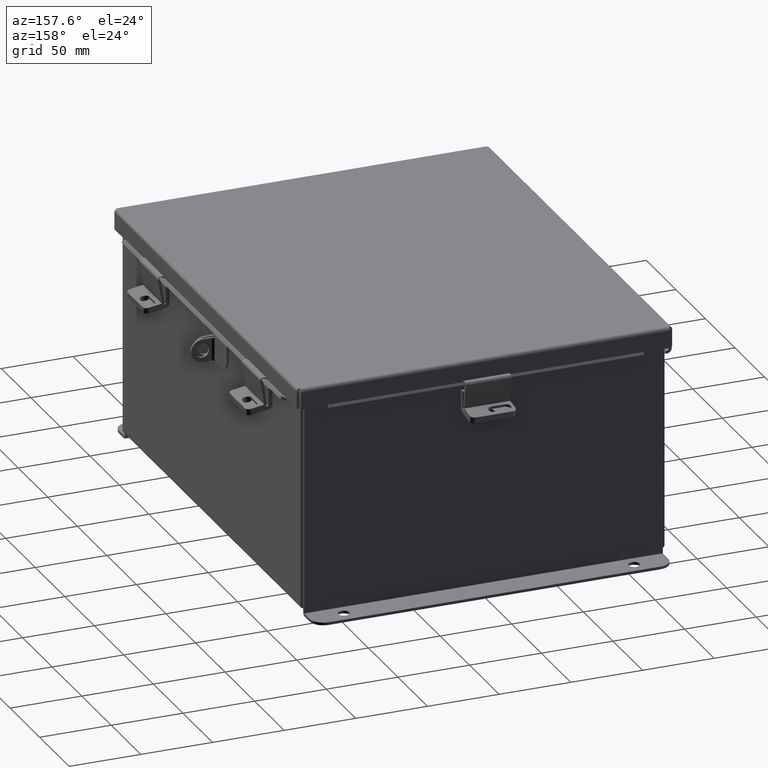
[diagram: clean part render]
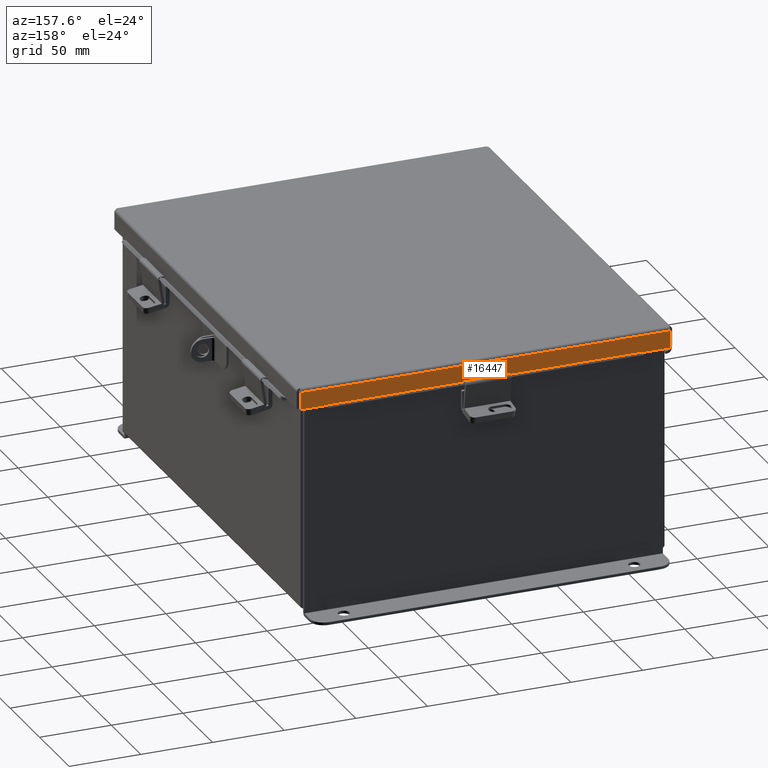
[diagram: same view with one face highlighted and labeled with its STEP entity id]
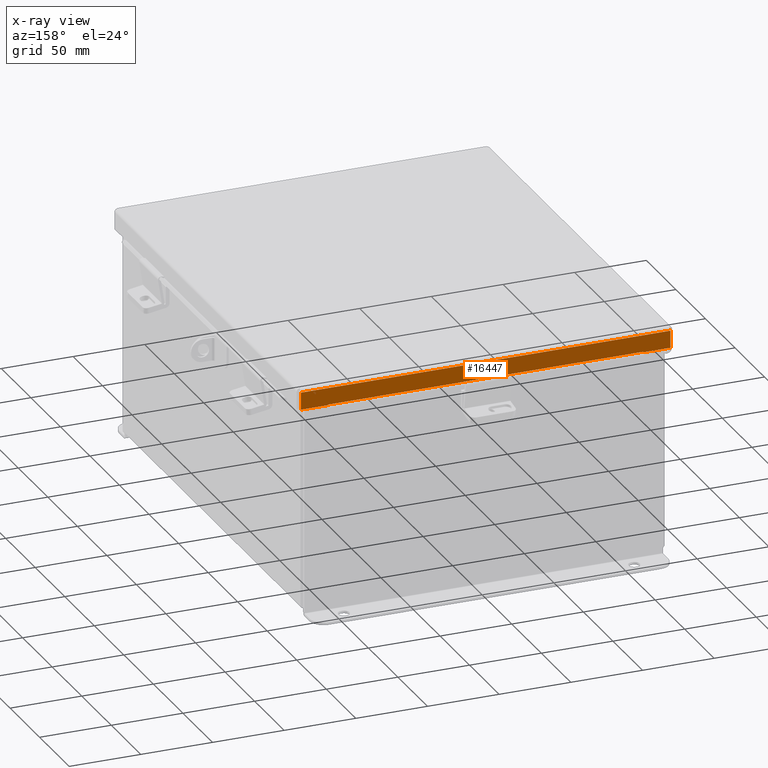
[diagram: x-ray of the same camera — body ghosted, the highlighted face saturated]
A machine part, auxiliary view. The second image highlights one B-rep face of the part: STEP entity #16447.
The next image is the same camera in x-ray: the body ghosted, the highlighted face saturated — about 0% of this face is hidden behind the body in this view.
In plain terms, the highlighted planar face has unit normal (-0, -1, -0).
Its self-contained STEP definition (entity closure, byte-faithful):
#39 = VECTOR ( 'NONE', #7144, 39.37007874015748100 ) ;
#340 = LINE ( 'NONE', #15768, #14478 ) ;
#421 = CARTESIAN_POINT ( 'NONE',  ( -5.074478932188135600, 6.156250000000003600, 0.4872999999999997300 ) ) ;
#446 = CARTESIAN_POINT ( 'NONE',  ( -5.074478932188135600, 6.156250000000000900, 0.01299999999999978100 ) ) ;
#986 = EDGE_CURVE ( 'NONE', #4814, #6118, #3391, .T. ) ;
#1121 = DIRECTION ( 'NONE',  ( 1.000000000000000000, -2.970179414530265500E-032, 1.300837525747178200E-046 ) ) ;
#1314 = AXIS2_PLACEMENT_3D ( 'NONE', #15762, #2092, #11656 ) ;
#1551 = VERTEX_POINT ( 'NONE', #10643 ) ;
#1672 = EDGE_CURVE ( 'NONE', #4814, #4583, #7636, .T. ) ;
#1841 = FACE_OUTER_BOUND ( 'NONE', #7132, .T. ) ;
#1907 = VECTOR ( 'NONE', #10100, 39.37007874015748100 ) ;
#1938 = CARTESIAN_POINT ( 'NONE',  ( 1.260358767695141600E-017, 6.156250000000003600, 0.4872999999999997900 ) ) ;
#2092 = DIRECTION ( 'NONE',  ( -2.970179414530265500E-032, -1.000000000000000000, 4.484872552701437000E-015 ) ) ;
#3391 = LINE ( 'NONE', #7730, #13875 ) ;
#3756 = EDGE_CURVE ( 'NONE', #4583, #16624, #14169, .T. ) ;
#3814 = CARTESIAN_POINT ( 'NONE',  ( -4.324478932188135600, 6.156250000000003600, 0.4717115427318791500 ) ) ;
#3829 = CARTESIAN_POINT ( 'NONE',  ( 4.324478932188136500, 6.156250000000003600, 0.4717115427318791500 ) ) ;
#4348 = EDGE_CURVE ( 'NONE', #16624, #1551, #10953, .T. ) ;
#4583 = VERTEX_POINT ( 'NONE', #15170 ) ;
#4814 = VERTEX_POINT ( 'NONE', #6725 ) ;
#5213 = ORIENTED_EDGE ( 'NONE', *, *, #6846, .T. ) ;
#5908 = DIRECTION ( 'NONE',  ( -0.0000000000000000000, 4.484872552701437000E-015, 1.000000000000000000 ) ) ;
#6118 = VERTEX_POINT ( 'NONE', #13179 ) ;
#6725 = CARTESIAN_POINT ( 'NONE',  ( 4.324478932188136500, 6.156250000000003600, 0.4872999999999997900 ) ) ;
#6846 = EDGE_CURVE ( 'NONE', #10071, #1551, #9581, .T. ) ;
#7106 = VERTEX_POINT ( 'NONE', #9248 ) ;
#7132 = EDGE_LOOP ( 'NONE', ( #17312, #16051, #11684, #13400, #17159, #5213, #13589, #15023 ) ) ;
#7144 = DIRECTION ( 'NONE',  ( 0.0000000000000000000, 0.0000000000000000000, 1.000000000000000000 ) ) ;
#7209 = VECTOR ( 'NONE', #17670, 39.37007874015748100 ) ;
#7314 = CARTESIAN_POINT ( 'NONE',  ( -4.324478932188135600, 6.156250000000003600, 0.4717115427318791500 ) ) ;
#7636 = LINE ( 'NONE', #13507, #7209 ) ;
#7730 = CARTESIAN_POINT ( 'NONE',  ( 1.260358767695141600E-017, 6.156250000000003600, 0.4872999999999997900 ) ) ;
#7926 = CARTESIAN_POINT ( 'NONE',  ( 5.156250000000000900, 6.156250000000000900, 0.01299999999999978100 ) ) ;
#9011 = EDGE_CURVE ( 'NONE', #17673, #10071, #340, .T. ) ;
#9248 = CARTESIAN_POINT ( 'NONE',  ( 5.074478932188135600, 6.156250000000000900, 0.01299999999999977400 ) ) ;
#9581 = LINE ( 'NONE', #1938, #1907 ) ;
#9995 = DIRECTION ( 'NONE',  ( 1.000000000000000000, 5.473822126268817900E-048, 6.622661802822457500E-018 ) ) ;
#10071 = VERTEX_POINT ( 'NONE', #421 ) ;
#10091 = LINE ( 'NONE', #7926, #13356 ) ;
#10100 = DIRECTION ( 'NONE',  ( 1.000000000000000000, 5.473822126268817900E-048, 6.622661802822457500E-018 ) ) ;
#10390 = LINE ( 'NONE', #14106, #10831 ) ;
#10524 = VECTOR ( 'NONE', #10693, 39.37007874015748100 ) ;
#10643 = CARTESIAN_POINT ( 'NONE',  ( -4.324478932188134700, 6.156250000000003600, 0.4872999999999997900 ) ) ;
#10693 = DIRECTION ( 'NONE',  ( -1.000000000000000000, -0.0000000000000000000, -0.0000000000000000000 ) ) ;
#10831 = VECTOR ( 'NONE', #5908, 39.37007874015748100 ) ;
#10953 = LINE ( 'NONE', #7314, #39 ) ;
#11656 = DIRECTION ( 'NONE',  ( 0.0000000000000000000, -4.484872552701437000E-015, -1.000000000000000000 ) ) ;
#11684 = ORIENTED_EDGE ( 'NONE', *, *, #16319, .F. ) ;
#11751 = EDGE_CURVE ( 'NONE', #17673, #7106, #10091, .T. ) ;
#12997 = PLANE ( 'NONE',  #1314 ) ;
#13179 = CARTESIAN_POINT ( 'NONE',  ( 5.074478932188136500, 6.156250000000003600, 0.4872999999999997900 ) ) ;
#13356 = VECTOR ( 'NONE', #1121, 39.37007874015748100 ) ;
#13400 = ORIENTED_EDGE ( 'NONE', *, *, #11751, .F. ) ;
#13507 = CARTESIAN_POINT ( 'NONE',  ( 4.324478932188136500, 6.156250000000003600, 0.4872999999999991800 ) ) ;
#13589 = ORIENTED_EDGE ( 'NONE', *, *, #4348, .F. ) ;
#13875 = VECTOR ( 'NONE', #9995, 39.37007874015748100 ) ;
#14106 = CARTESIAN_POINT ( 'NONE',  ( 5.074478932188136500, 6.156250000000000900, -3.350199796867980800E-016 ) ) ;
#14169 = LINE ( 'NONE', #3829, #10524 ) ;
#14349 = DIRECTION ( 'NONE',  ( 0.0000000000000000000, 4.484872552701437000E-015, 1.000000000000000000 ) ) ;
#14478 = VECTOR ( 'NONE', #14349, 39.37007874015748100 ) ;
#15023 = ORIENTED_EDGE ( 'NONE', *, *, #3756, .F. ) ;
#15170 = CARTESIAN_POINT ( 'NONE',  ( 4.324478932188136500, 6.156250000000003600, 0.4717115427318791500 ) ) ;
#15762 = CARTESIAN_POINT ( 'NONE',  ( 1.583081077346698300E-017, 6.156250000000000900, -2.787081030857980700E-014 ) ) ;
#15768 = CARTESIAN_POINT ( 'NONE',  ( -5.074478932188134700, 6.156250000000000900, -2.787081030857980700E-014 ) ) ;
#16051 = ORIENTED_EDGE ( 'NONE', *, *, #986, .T. ) ;
#16319 = EDGE_CURVE ( 'NONE', #7106, #6118, #10390, .T. ) ;
#16447 = ADVANCED_FACE ( 'NONE', ( #1841 ), #12997, .F. ) ;
#16624 = VERTEX_POINT ( 'NONE', #3814 ) ;
#17159 = ORIENTED_EDGE ( 'NONE', *, *, #9011, .T. ) ;
#17312 = ORIENTED_EDGE ( 'NONE', *, *, #1672, .F. ) ;
#17670 = DIRECTION ( 'NONE',  ( 0.0000000000000000000, 0.0000000000000000000, -1.000000000000000000 ) ) ;
#17673 = VERTEX_POINT ( 'NONE', #446 ) ;